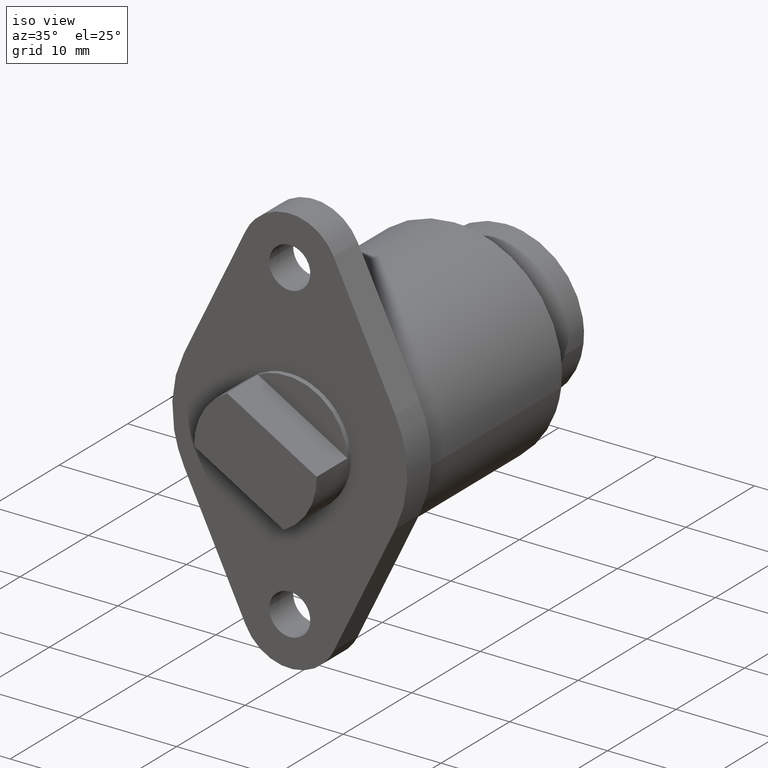
[diagram: clean part render]
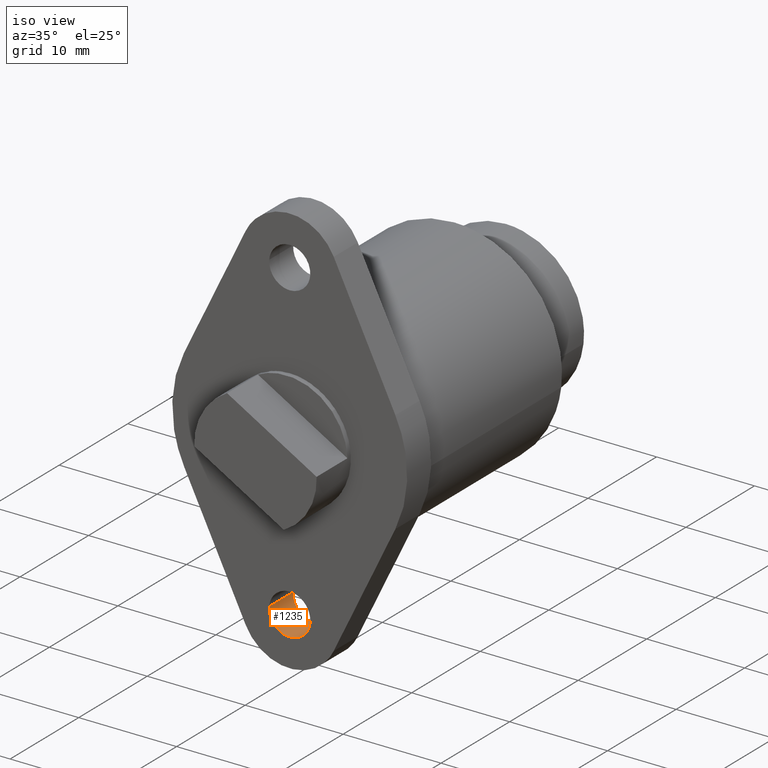
[diagram: same view with one face highlighted and labeled with its STEP entity id]
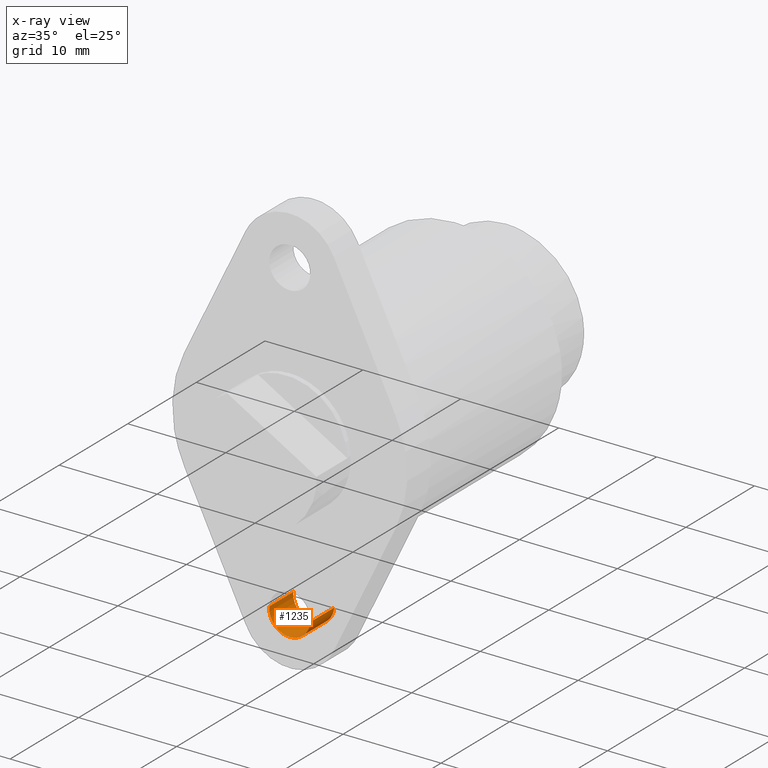
[diagram: x-ray of the same camera — body ghosted, the highlighted face saturated]
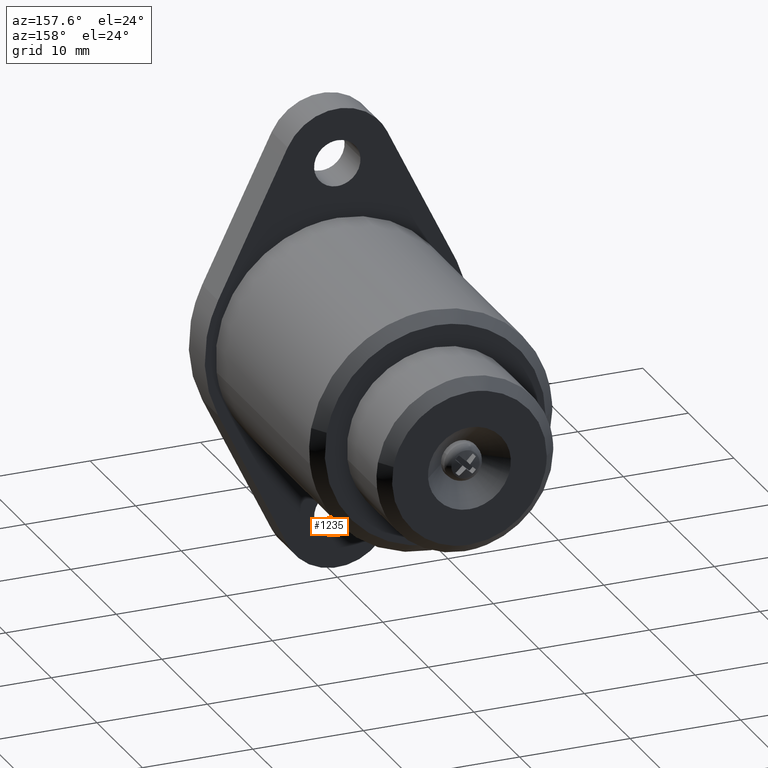
[diagram: same view with one face highlighted and labeled with its STEP entity id]
A machine part, iso view. The second image highlights one B-rep face of the part: STEP entity #1235.
The next image is the same camera in x-ray: the body ghosted, the highlighted face saturated — about 0% of this face is hidden behind the body in this view.
A second angle (auxiliary view) of the same face is appended — the face is thin or edge-on in the first view.
In plain terms, the highlighted face is a freeform B-spline surface patch.
Its self-contained STEP definition (entity closure, byte-faithful):
#1137=CARTESIAN_POINT('',(2.093526400839568,-3.587499999999950,-16.164753626851478));
#1138=CARTESIAN_POINT('',(1.928762299811092,-3.587499999999950,-18.258280027691040));
#1139=CARTESIAN_POINT('',(-0.164764101028476,-3.587499999999950,-18.093515926662569));
#1140=CARTESIAN_POINT('',(-2.258290501868045,-3.587499999999950,-17.928751825634091));
#1141=CARTESIAN_POINT('',(-2.093526400839568,-3.587499999999950,-15.835225424794521));
#1142=CARTESIAN_POINT('',(2.093526400839568,0.089687499999999,-16.164753626851478));
#1143=CARTESIAN_POINT('',(1.928762299811092,0.089687499999999,-18.258280027691040));
#1144=CARTESIAN_POINT('',(-0.164764101028476,0.089687499999999,-18.093515926662569));
#1145=CARTESIAN_POINT('',(-2.258290501868045,0.089687499999999,-17.928751825634091));
#1146=CARTESIAN_POINT('',(-2.093526400839568,0.089687499999999,-15.835225424794521));
#1154=(BOUNDED_SURFACE()B_SPLINE_SURFACE(2,1,((#1137,#1142),(#1138,#1143),(#1139,#1144),(#1140,#1145),(#1141,#1146)),.UNSPECIFIED.,.F.,.F.,.U.)B_SPLINE_SURFACE_WITH_KNOTS((3,2,3),(2,2),(0.0,3.479393923934000,6.958787847867999),(0.0,3.677187499999949),.UNSPECIFIED.)GEOMETRIC_REPRESENTATION_ITEM()RATIONAL_B_SPLINE_SURFACE(((1.0,1.0),(0.707106781186548,0.707106781186548),(1.0,1.0),(0.707106781186548,0.707106781186548),(1.0,1.0)))REPRESENTATION_ITEM('')SURFACE());
#1155=CARTESIAN_POINT('',(0.0,0.0,-18.099989525822998));
#1156=VERTEX_POINT('',#1155);
#1157=CARTESIAN_POINT('',(2.093526400831510,1.942890E-016,-16.164753626953861));
#1158=VERTEX_POINT('',#1157);
#1159=CARTESIAN_POINT('',(0.0,0.0,-18.099989525822998));
#1160=CARTESIAN_POINT('',(1.941220032291773,0.0,-18.099989525822998));
#1161=CARTESIAN_POINT('',(2.093526400831511,1.942890E-016,-16.164753626953857));
#1169=(BOUNDED_CURVE()B_SPLINE_CURVE(2,(#1159,#1160,#1161),.UNSPECIFIED.,.F.,.U.)B_SPLINE_CURVE_WITH_KNOTS((3,3),(0.0,0.236331300616000),.UNSPECIFIED.)CURVE()GEOMETRIC_REPRESENTATION_ITEM()RATIONAL_B_SPLINE_CURVE((1.0,0.723120658624841,0.969723356136823))REPRESENTATION_ITEM(''));
#1170=EDGE_CURVE('',#1156,#1158,#1169,.T.);
#1171=ORIENTED_EDGE('',*,*,#1170,.F.);
#1172=CARTESIAN_POINT('',(-2.093526400831510,1.942890E-016,-15.835225424692140));
#1173=VERTEX_POINT('',#1172);
#1174=CARTESIAN_POINT('',(-2.093526400831511,1.942890E-016,-15.835225424692139));
#1175=CARTESIAN_POINT('',(-2.100000000000000,0.0,-15.917480301004035));
#1176=CARTESIAN_POINT('',(-2.100000000000000,0.0,-15.999989525823000));
#1177=CARTESIAN_POINT('',(-2.100000000000000,0.0,-18.099989525823005));
#1178=CARTESIAN_POINT('',(0.0,0.0,-18.099989525822998));
#1186=(BOUNDED_CURVE()B_SPLINE_CURVE(2,(#1174,#1175,#1176,#1177,#1178),.UNSPECIFIED.,.F.,.U.)B_SPLINE_CURVE_WITH_KNOTS((3,2,3),(0.736331300616000,0.750000000000000,1.0),.UNSPECIFIED.)CURVE()GEOMETRIC_REPRESENTATION_ITEM()RATIONAL_B_SPLINE_CURVE((0.969723356136824,0.983986122561707,1.0,0.707106781186548,1.0))REPRESENTATION_ITEM(''));
#1187=EDGE_CURVE('',#1173,#1156,#1186,.T.);
#1188=ORIENTED_EDGE('',*,*,#1187,.F.);
#1189=CARTESIAN_POINT('',(-2.093526400831510,-3.499999999999950,-15.835225424692140));
#1190=VERTEX_POINT('',#1189);
#1191=CARTESIAN_POINT('',(-2.093526400831510,-3.499999999999950,-15.835225424692140));
#1192=CARTESIAN_POINT('',(-2.093526400831510,1.942890E-016,-15.835225424692140));
#1193=QUASI_UNIFORM_CURVE('',1,(#1191,#1192),.UNSPECIFIED.,.F.,.U.);
#1194=EDGE_CURVE('',#1190,#1173,#1193,.T.);
#1195=ORIENTED_EDGE('',*,*,#1194,.F.);
#1196=CARTESIAN_POINT('',(0.0,-3.499999999999950,-18.099989525822998));
#1197=VERTEX_POINT('',#1196);
#1198=CARTESIAN_POINT('',(-2.093526400831511,-3.499999999999951,-15.835225424692139));
#1199=CARTESIAN_POINT('',(-2.100000000000000,-3.499999999999951,-15.917480301004035));
#1200=CARTESIAN_POINT('',(-2.100000000000000,-3.499999999999950,-15.999989525823000));
#1201=CARTESIAN_POINT('',(-2.100000000000000,-3.499999999999949,-18.099989525823005));
#1202=CARTESIAN_POINT('',(0.0,-3.499999999999950,-18.099989525822998));
#1210=(BOUNDED_CURVE()B_SPLINE_CURVE(2,(#1198,#1199,#1200,#1201,#1202),.UNSPECIFIED.,.F.,.U.)B_SPLINE_CURVE_WITH_KNOTS((3,2,3),(0.736331300616000,0.750000000000000,1.0),.UNSPECIFIED.)CURVE()GEOMETRIC_REPRESENTATION_ITEM()RATIONAL_B_SPLINE_CURVE((0.969723356136824,0.983986122561707,1.0,0.707106781186548,1.0))REPRESENTATION_ITEM(''));
#1211=EDGE_CURVE('',#1190,#1197,#1210,.T.);
#1212=ORIENTED_EDGE('',*,*,#1211,.T.);
#1213=CARTESIAN_POINT('',(2.093526400831511,-3.499999999999950,-16.164753626953861));
#1214=VERTEX_POINT('',#1213);
#1215=CARTESIAN_POINT('',(0.0,-3.499999999999950,-18.099989525822998));
#1216=CARTESIAN_POINT('',(1.941220032291773,-3.499999999999950,-18.099989525822998));
#1217=CARTESIAN_POINT('',(2.093526400831511,-3.499999999999950,-16.164753626953857));
#1225=(BOUNDED_CURVE()B_SPLINE_CURVE(2,(#1215,#1216,#1217),.UNSPECIFIED.,.F.,.U.)B_SPLINE_CURVE_WITH_KNOTS((3,3),(0.0,0.236331300616000),.UNSPECIFIED.)CURVE()GEOMETRIC_REPRESENTATION_ITEM()RATIONAL_B_SPLINE_CURVE((1.0,0.723120658624841,0.969723356136823))REPRESENTATION_ITEM(''));
#1226=EDGE_CURVE('',#1197,#1214,#1225,.T.);
#1227=ORIENTED_EDGE('',*,*,#1226,.T.);
#1228=CARTESIAN_POINT('',(2.093526400831511,-3.499999999999950,-16.164753626953861));
#1229=CARTESIAN_POINT('',(2.093526400831510,1.942890E-016,-16.164753626953861));
#1230=QUASI_UNIFORM_CURVE('',1,(#1228,#1229),.UNSPECIFIED.,.F.,.U.);
#1231=EDGE_CURVE('',#1214,#1158,#1230,.T.);
#1232=ORIENTED_EDGE('',*,*,#1231,.T.);
#1233=EDGE_LOOP('',(#1171,#1188,#1195,#1212,#1227,#1232));
#1234=FACE_OUTER_BOUND('',#1233,.T.);
#1235=ADVANCED_FACE('',(#1234),#1154,.F.);